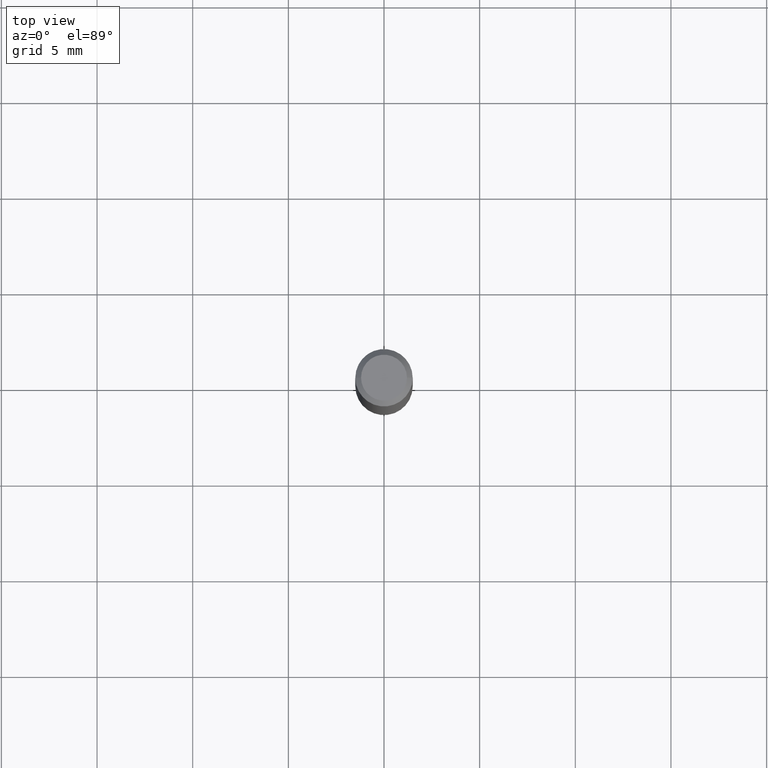
[diagram: clean part render]
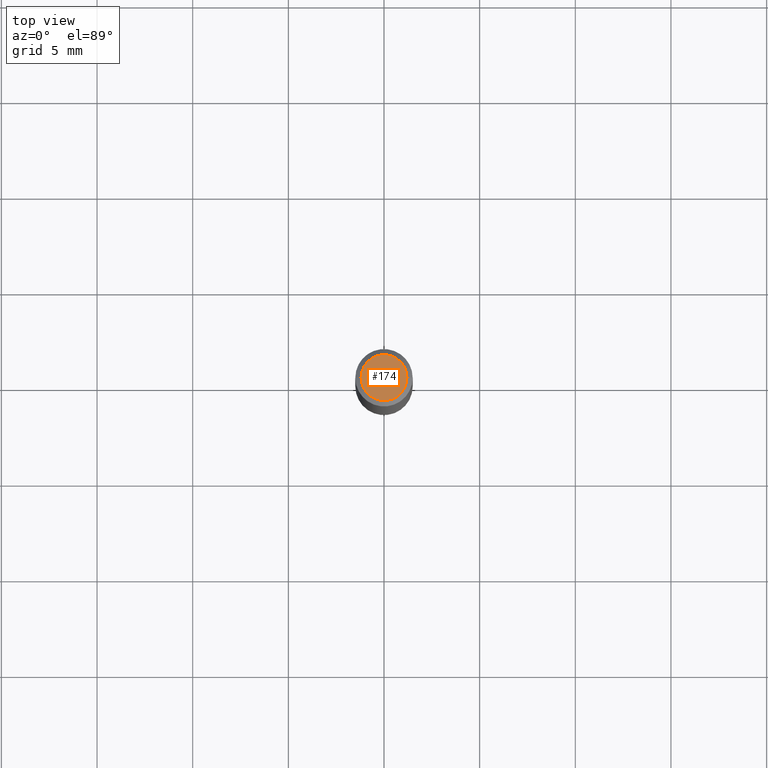
[diagram: same view with one face highlighted and labeled with its STEP entity id]
A machine part, top view. The second image highlights one B-rep face of the part: STEP entity #174.
In plain terms, the highlighted planar face has unit normal (0, -0, -1).
Its self-contained STEP definition (entity closure, byte-faithful):
#16 = DIRECTION ( 'NONE',  ( 1.000000000000000000, -6.982962677686266711E-15, 4.876185090822587894E-29 ) ) ;
#35 = DIRECTION ( 'NONE',  ( -1.000000000000000000, 6.982962677686265922E-15, -4.876176775795935793E-29 ) ) ;
#59 = FACE_OUTER_BOUND ( 'NONE', #336, .T. ) ;
#73 = ORIENTED_EDGE ( 'NONE', *, *, #189, .T. ) ;
#79 = AXIS2_PLACEMENT_3D ( 'NONE', #331, #97, #144 ) ;
#85 = CARTESIAN_POINT ( 'NONE',  ( 8.265746106709734507E-48, -1.180129479067563789E-33, -3.380025165646692144E-19 ) ) ;
#86 = ORIENTED_EDGE ( 'NONE', *, *, #149, .T. ) ;
#97 = DIRECTION ( 'NONE',  ( -2.445468806185136597E-29, 3.491481338843145583E-15, 1.000000000000000000 ) ) ;
#144 = DIRECTION ( 'NONE',  ( 1.000000000000000000, -6.982962677686266711E-15, 4.876185090822587894E-29 ) ) ;
#149 = EDGE_CURVE ( 'NONE', #326, #470, #293, .T. ) ;
#174 = ADVANCED_FACE ( 'NONE', ( #59 ), #370, .F. ) ;
#183 = CIRCLE ( 'NONE', #79, 0.04724000000000000421 ) ;
#189 = EDGE_CURVE ( 'NONE', #470, #326, #183, .T. ) ;
#293 = CIRCLE ( 'NONE', #332, 0.04724000000000000421 ) ;
#309 = AXIS2_PLACEMENT_3D ( 'NONE', #451, #378, #35 ) ;
#326 = VERTEX_POINT ( 'NONE', #449 ) ;
#331 = CARTESIAN_POINT ( 'NONE',  ( 8.265746106709734507E-48, -1.180129479067563789E-33, -3.380025165646692144E-19 ) ) ;
#332 = AXIS2_PLACEMENT_3D ( 'NONE', #85, #364, #16 ) ;
#336 = EDGE_LOOP ( 'NONE', ( #86, #73 ) ) ;
#364 = DIRECTION ( 'NONE',  ( -2.445468806185136597E-29, 3.491481338843145583E-15, 1.000000000000000000 ) ) ;
#370 = PLANE ( 'NONE',  #309 ) ;
#378 = DIRECTION ( 'NONE',  ( 2.438088387897960049E-29, -3.491481338843145188E-15, -1.000000000000000000 ) ) ;
#418 = CARTESIAN_POINT ( 'NONE',  ( 0.04724000000000000421, -3.852183633974369345E-16, -3.380025165621689721E-19 ) ) ;
#449 = CARTESIAN_POINT ( 'NONE',  ( -0.04724000000000000421, 3.504923541997677355E-16, -3.380025165670481712E-19 ) ) ;
#451 = CARTESIAN_POINT ( 'NONE',  ( 4.132873053354867254E-48, -5.900647395337818946E-34, -1.690012582823346072E-19 ) ) ;
#470 = VERTEX_POINT ( 'NONE', #418 ) ;